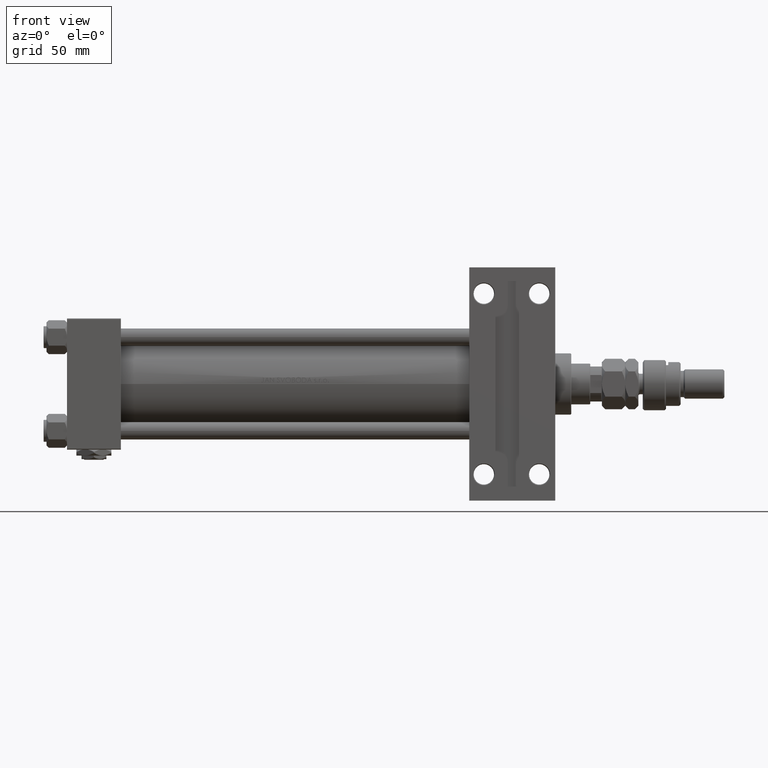
[diagram: clean part render]
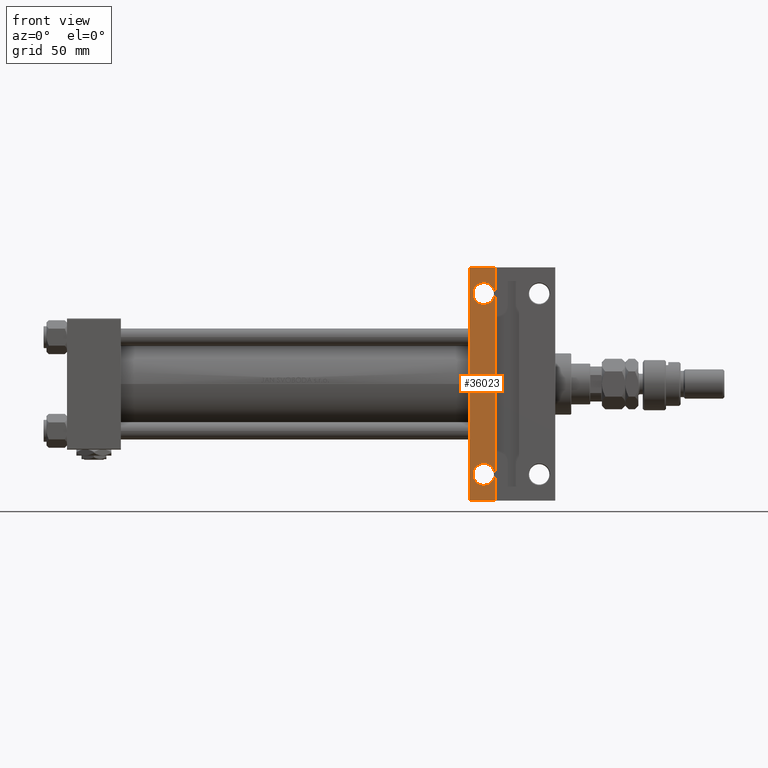
[diagram: same view with one face highlighted and labeled with its STEP entity id]
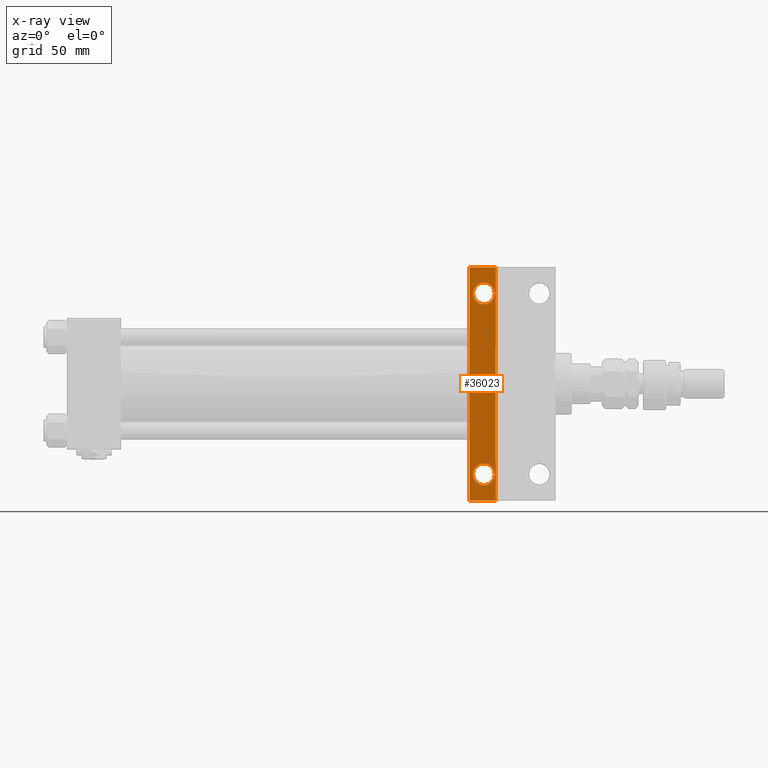
[diagram: x-ray of the same camera — body ghosted, the highlighted face saturated]
A machine part, front view. The second image highlights one B-rep face of the part: STEP entity #36023.
The next image is the same camera in x-ray: the body ghosted, the highlighted face saturated — about 0% of this face is hidden behind the body in this view.
In plain terms, the highlighted planar face has unit normal (0, -1, 0).
Its self-contained STEP definition (entity closure, byte-faithful):
#2467 = CIRCLE ( 'NONE', #52554, 7.499499999999992284 ) ;
#4173 = ORIENTED_EDGE ( 'NONE', *, *, #13396, .T. ) ;
#4517 = VERTEX_POINT ( 'NONE', #8993 ) ;
#4560 = VERTEX_POINT ( 'NONE', #21490 ) ;
#7314 = VERTEX_POINT ( 'NONE', #10043 ) ;
#8479 = DIRECTION ( 'NONE',  ( 0.000000000000000000, 0.000000000000000000, -1.000000000000000000 ) ) ;
#8978 = DIRECTION ( 'NONE',  ( -0.000000000000000000, -0.000000000000000000, 1.000000000000000000 ) ) ;
#8993 = CARTESIAN_POINT ( 'NONE',  ( 275.9999999999999432, 79.99999999999995737, -45.00000000000000000 ) ) ;
#10043 = CARTESIAN_POINT ( 'NONE',  ( 275.9999999999999432, -80.00000000000001421, -45.00000000000000000 ) ) ;
#10184 = AXIS2_PLACEMENT_3D ( 'NONE', #26454, #22459, #30688 ) ;
#11465 = CARTESIAN_POINT ( 'NONE',  ( 293.4994999999999550, -62.00000000000002842, -45.00000000000000000 ) ) ;
#12364 = EDGE_CURVE ( 'NONE', #34060, #30745, #13342, .T. ) ;
#12451 = PLANE ( 'NONE',  #36558 ) ;
#13342 = CIRCLE ( 'NONE', #43035, 7.499499999999992284 ) ;
#13396 = EDGE_CURVE ( 'NONE', #14140, #4560, #21094, .T. ) ;
#13711 = DIRECTION ( 'NONE',  ( -1.000000000000000000, 0.000000000000000000, 0.000000000000000000 ) ) ;
#13746 = EDGE_CURVE ( 'NONE', #4517, #15702, #36378, .T. ) ;
#14140 = VERTEX_POINT ( 'NONE', #11465 ) ;
#14250 = CARTESIAN_POINT ( 'NONE',  ( 293.9999999999999432, 79.99999999999995737, -45.00000000000000000 ) ) ;
#15227 = VERTEX_POINT ( 'NONE', #41418 ) ;
#15702 = VERTEX_POINT ( 'NONE', #14250 ) ;
#15936 = DIRECTION ( 'NONE',  ( -1.000000000000000000, 0.000000000000000000, 0.000000000000000000 ) ) ;
#20097 = LINE ( 'NONE', #52265, #41881 ) ;
#20688 = DIRECTION ( 'NONE',  ( 1.000000000000000000, 4.704334850106595794E-16, 0.000000000000000000 ) ) ;
#21082 = EDGE_CURVE ( 'NONE', #4517, #7314, #33709, .T. ) ;
#21094 = CIRCLE ( 'NONE', #10184, 7.499499999999992284 ) ;
#21490 = CARTESIAN_POINT ( 'NONE',  ( 278.5004999999999882, -62.00000000000002842, -45.00000000000000000 ) ) ;
#22459 = DIRECTION ( 'NONE',  ( -0.000000000000000000, -0.000000000000000000, 1.000000000000000000 ) ) ;
#22485 = ORIENTED_EDGE ( 'NONE', *, *, #13746, .T. ) ;
#23895 = FACE_BOUND ( 'NONE', #51303, .T. ) ;
#24155 = DIRECTION ( 'NONE',  ( -1.000000000000000000, 0.000000000000000000, -0.000000000000000000 ) ) ;
#24847 = ORIENTED_EDGE ( 'NONE', *, *, #49661, .T. ) ;
#24935 = CARTESIAN_POINT ( 'NONE',  ( 275.9999999999999432, 45.00000000000001421, -45.00000000000000000 ) ) ;
#25451 = CARTESIAN_POINT ( 'NONE',  ( 286.0000000000000000, -62.00000000000002842, -45.00000000000000000 ) ) ;
#25654 = VECTOR ( 'NONE', #44639, 1000.000000000000000 ) ;
#26454 = CARTESIAN_POINT ( 'NONE',  ( 286.0000000000000000, -62.00000000000002842, -45.00000000000000000 ) ) ;
#28684 = LINE ( 'NONE', #49153, #25654 ) ;
#30481 = ORIENTED_EDGE ( 'NONE', *, *, #12364, .T. ) ;
#30688 = DIRECTION ( 'NONE',  ( -1.000000000000000000, 0.000000000000000000, 0.000000000000000000 ) ) ;
#30745 = VERTEX_POINT ( 'NONE', #52366 ) ;
#31325 = VECTOR ( 'NONE', #33976, 1000.000000000000000 ) ;
#32873 = ORIENTED_EDGE ( 'NONE', *, *, #21082, .F. ) ;
#33261 = EDGE_LOOP ( 'NONE', ( #48962, #52482, #32873, #22485 ) ) ;
#33709 = LINE ( 'NONE', #24935, #31325 ) ;
#33976 = DIRECTION ( 'NONE',  ( 0.000000000000000000, -1.000000000000000000, 0.000000000000000000 ) ) ;
#34060 = VERTEX_POINT ( 'NONE', #50060 ) ;
#36023 = ADVANCED_FACE ( 'NONE', ( #44082, #23895, #40089 ), #12451, .T. ) ;
#36175 = ORIENTED_EDGE ( 'NONE', *, *, #47488, .T. ) ;
#36378 = LINE ( 'NONE', #40608, #41456 ) ;
#36558 = AXIS2_PLACEMENT_3D ( 'NONE', #44874, #8479, #24155 ) ;
#36678 = CARTESIAN_POINT ( 'NONE',  ( 286.0000000000000000, 62.00000000000002842, -45.00000000000000000 ) ) ;
#37423 = DIRECTION ( 'NONE',  ( -1.000000000000000000, 0.000000000000000000, 0.000000000000000000 ) ) ;
#37631 = CARTESIAN_POINT ( 'NONE',  ( 286.0000000000000000, 62.00000000000002842, -45.00000000000000000 ) ) ;
#39269 = EDGE_LOOP ( 'NONE', ( #24847, #4173 ) ) ;
#40089 = FACE_BOUND ( 'NONE', #39269, .T. ) ;
#40560 = EDGE_CURVE ( 'NONE', #15227, #7314, #28684, .T. ) ;
#40608 = CARTESIAN_POINT ( 'NONE',  ( 275.9999999999999432, 79.99999999999995737, -45.00000000000000000 ) ) ;
#41418 = CARTESIAN_POINT ( 'NONE',  ( 293.9999999999999432, -79.99999999999995737, -45.00000000000000000 ) ) ;
#41456 = VECTOR ( 'NONE', #20688, 1000.000000000000000 ) ;
#41881 = VECTOR ( 'NONE', #47745, 1000.000000000000000 ) ;
#43035 = AXIS2_PLACEMENT_3D ( 'NONE', #37631, #50123, #13711 ) ;
#43650 = EDGE_CURVE ( 'NONE', #15227, #15702, #20097, .T. ) ;
#44082 = FACE_OUTER_BOUND ( 'NONE', #33261, .T. ) ;
#44639 = DIRECTION ( 'NONE',  ( -1.000000000000000000, 4.704334850106595794E-16, -0.000000000000000000 ) ) ;
#44874 = CARTESIAN_POINT ( 'NONE',  ( 334.9999999999999432, 45.00000000000001421, -45.00000000000000000 ) ) ;
#47488 = EDGE_CURVE ( 'NONE', #30745, #34060, #2467, .T. ) ;
#47745 = DIRECTION ( 'NONE',  ( 0.000000000000000000, 1.000000000000000000, 0.000000000000000000 ) ) ;
#48884 = DIRECTION ( 'NONE',  ( -0.000000000000000000, -0.000000000000000000, 1.000000000000000000 ) ) ;
#48962 = ORIENTED_EDGE ( 'NONE', *, *, #43650, .F. ) ;
#49089 = AXIS2_PLACEMENT_3D ( 'NONE', #25451, #8978, #37423 ) ;
#49153 = CARTESIAN_POINT ( 'NONE',  ( 275.9999999999999432, -80.00000000000001421, -45.00000000000000000 ) ) ;
#49661 = EDGE_CURVE ( 'NONE', #4560, #14140, #51757, .T. ) ;
#50060 = CARTESIAN_POINT ( 'NONE',  ( 293.4994999999999550, 62.00000000000002842, -45.00000000000000000 ) ) ;
#50123 = DIRECTION ( 'NONE',  ( -0.000000000000000000, -0.000000000000000000, 1.000000000000000000 ) ) ;
#51303 = EDGE_LOOP ( 'NONE', ( #36175, #30481 ) ) ;
#51757 = CIRCLE ( 'NONE', #49089, 7.499499999999992284 ) ;
#52265 = CARTESIAN_POINT ( 'NONE',  ( 293.9999999999999432, -79.99999999999995737, -45.00000000000000000 ) ) ;
#52366 = CARTESIAN_POINT ( 'NONE',  ( 278.5004999999999882, 62.00000000000002842, -45.00000000000000000 ) ) ;
#52482 = ORIENTED_EDGE ( 'NONE', *, *, #40560, .T. ) ;
#52554 = AXIS2_PLACEMENT_3D ( 'NONE', #36678, #48884, #15936 ) ;